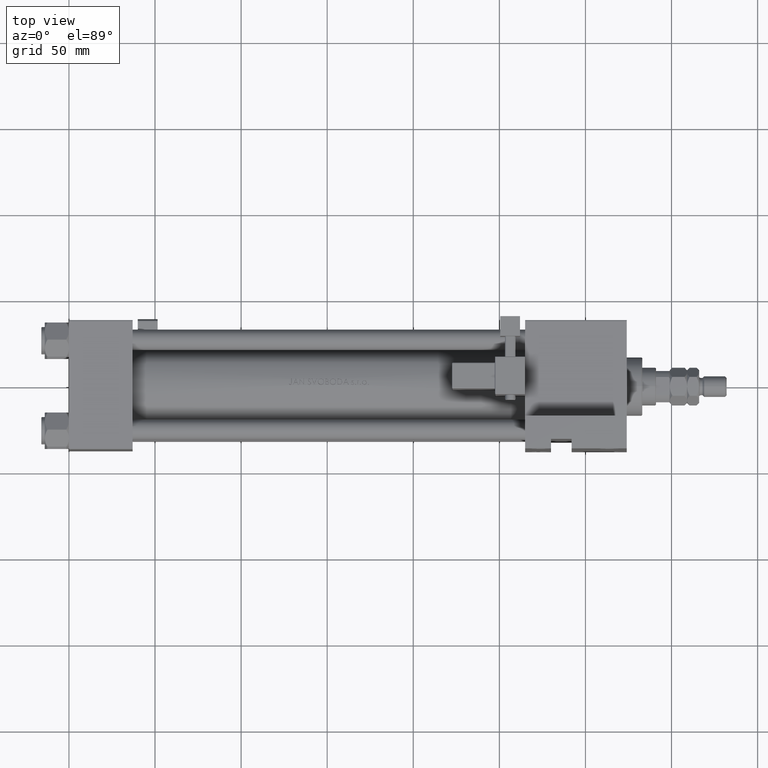
[diagram: clean part render]
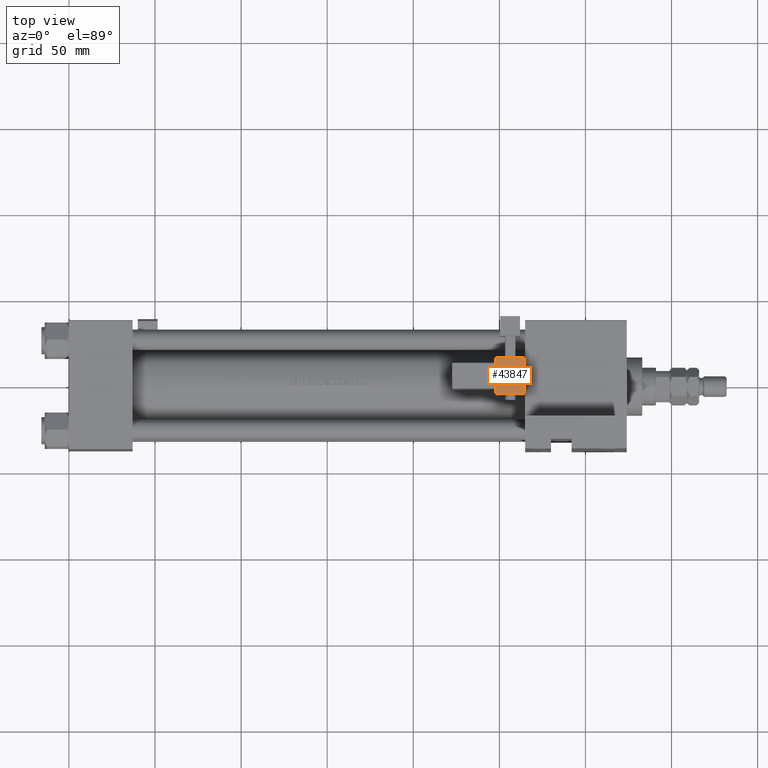
[diagram: same view with one face highlighted and labeled with its STEP entity id]
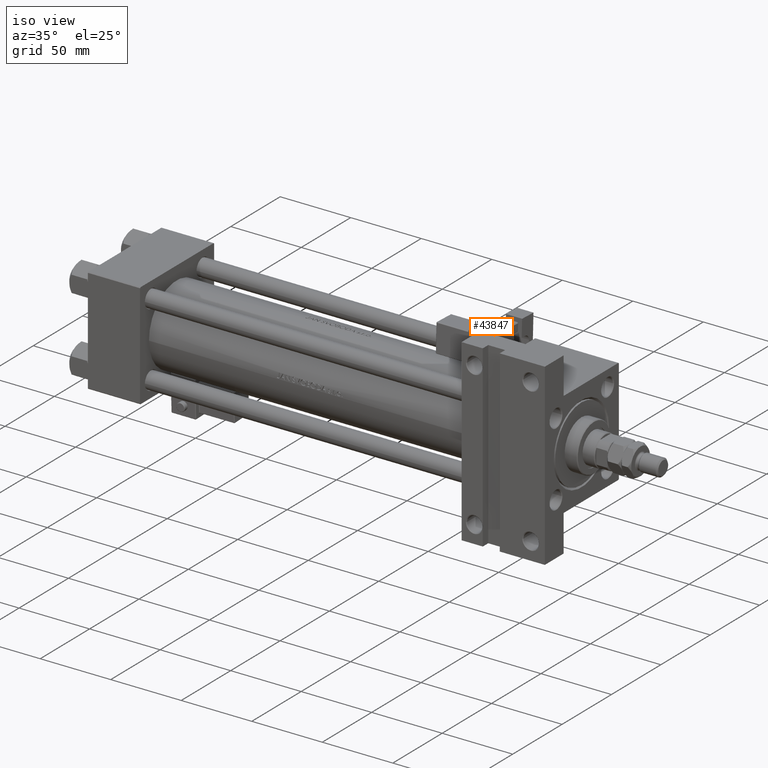
[diagram: same view with one face highlighted and labeled with its STEP entity id]
A machine part, top view. The second image highlights one B-rep face of the part: STEP entity #43847.
A second angle (iso view) of the same face is appended — the face is thin or edge-on in the first view.
In plain terms, the highlighted planar face has unit normal (0, -0.0353, -0.9994).
Its self-contained STEP definition (entity closure, byte-faithful):
#495 = VECTOR ( 'NONE', #28615, 1000.000000000000000 ) ;
#2179 = DIRECTION ( 'NONE',  ( 1.000000000000000000, -0.000000000000000000, 0.000000000000000000 ) ) ;
#3214 = DIRECTION ( 'NONE',  ( 0.000000000000000000, 0.000000000000000000, 1.000000000000000000 ) ) ;
#4088 = VERTEX_POINT ( 'NONE', #34515 ) ;
#6350 = FACE_OUTER_BOUND ( 'NONE', #46705, .T. ) ;
#8283 = LINE ( 'NONE', #43594, #37163 ) ;
#8442 = CARTESIAN_POINT ( 'NONE',  ( 8.250000000000003553, -18.25000000000000355, -1.000000000000000222 ) ) ;
#9367 = DIRECTION ( 'NONE',  ( -0.000000000000000000, 1.000000000000000000, 0.000000000000000000 ) ) ;
#10050 = VERTEX_POINT ( 'NONE', #8442 ) ;
#11014 = DIRECTION ( 'NONE',  ( 1.000000000000000000, 0.000000000000000000, -0.000000000000000000 ) ) ;
#13863 = LINE ( 'NONE', #18510, #18120 ) ;
#18120 = VECTOR ( 'NONE', #2179, 1000.000000000000000 ) ;
#18296 = CARTESIAN_POINT ( 'NONE',  ( 8.750000000000003553, -39.75000000000000000, -1.000000000000000222 ) ) ;
#18510 = CARTESIAN_POINT ( 'NONE',  ( 8.750000000000003553, -18.25000000000000355, -1.000000000000000222 ) ) ;
#21376 = AXIS2_PLACEMENT_3D ( 'NONE', #18296, #3214, #11014 ) ;
#22474 = ORIENTED_EDGE ( 'NONE', *, *, #44513, .T. ) ;
#25483 = LINE ( 'NONE', #33510, #48963 ) ;
#26596 = CARTESIAN_POINT ( 'NONE',  ( 8.250000000000003553, -39.25000000000000000, -1.000000000000000222 ) ) ;
#28587 = ORIENTED_EDGE ( 'NONE', *, *, #49887, .T. ) ;
#28615 = DIRECTION ( 'NONE',  ( -0.000000000000000000, -1.000000000000000000, -0.000000000000000000 ) ) ;
#29996 = PLANE ( 'NONE',  #21376 ) ;
#30150 = VERTEX_POINT ( 'NONE', #26596 ) ;
#32156 = CARTESIAN_POINT ( 'NONE',  ( -8.250000000000003553, -39.25000000000000000, -1.000000000000000222 ) ) ;
#32499 = LINE ( 'NONE', #47573, #495 ) ;
#33510 = CARTESIAN_POINT ( 'NONE',  ( -8.250000000000003553, -39.75000000000000000, -1.000000000000000222 ) ) ;
#34515 = CARTESIAN_POINT ( 'NONE',  ( -8.250000000000003553, -18.25000000000000355, -1.000000000000000222 ) ) ;
#35801 = DIRECTION ( 'NONE',  ( -1.000000000000000000, -0.000000000000000000, 0.000000000000000000 ) ) ;
#36715 = VERTEX_POINT ( 'NONE', #32156 ) ;
#36830 = ORIENTED_EDGE ( 'NONE', *, *, #46244, .T. ) ;
#37163 = VECTOR ( 'NONE', #35801, 1000.000000000000000 ) ;
#41121 = EDGE_CURVE ( 'NONE', #10050, #30150, #32499, .T. ) ;
#42204 = ORIENTED_EDGE ( 'NONE', *, *, #41121, .T. ) ;
#43594 = CARTESIAN_POINT ( 'NONE',  ( 8.750000000000003553, -39.25000000000000000, -1.000000000000000222 ) ) ;
#43847 = ADVANCED_FACE ( 'NONE', ( #6350 ), #29996, .F. ) ;
#44513 = EDGE_CURVE ( 'NONE', #30150, #36715, #8283, .T. ) ;
#46244 = EDGE_CURVE ( 'NONE', #4088, #10050, #13863, .T. ) ;
#46705 = EDGE_LOOP ( 'NONE', ( #36830, #42204, #22474, #28587 ) ) ;
#47573 = CARTESIAN_POINT ( 'NONE',  ( 8.250000000000003553, -39.75000000000000000, -1.000000000000000222 ) ) ;
#48963 = VECTOR ( 'NONE', #9367, 1000.000000000000000 ) ;
#49887 = EDGE_CURVE ( 'NONE', #36715, #4088, #25483, .T. ) ;